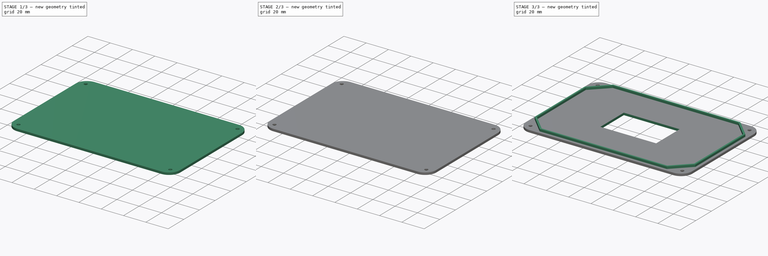
[diagram: build sequence overview — one tinted view per stage of 3, left to right]
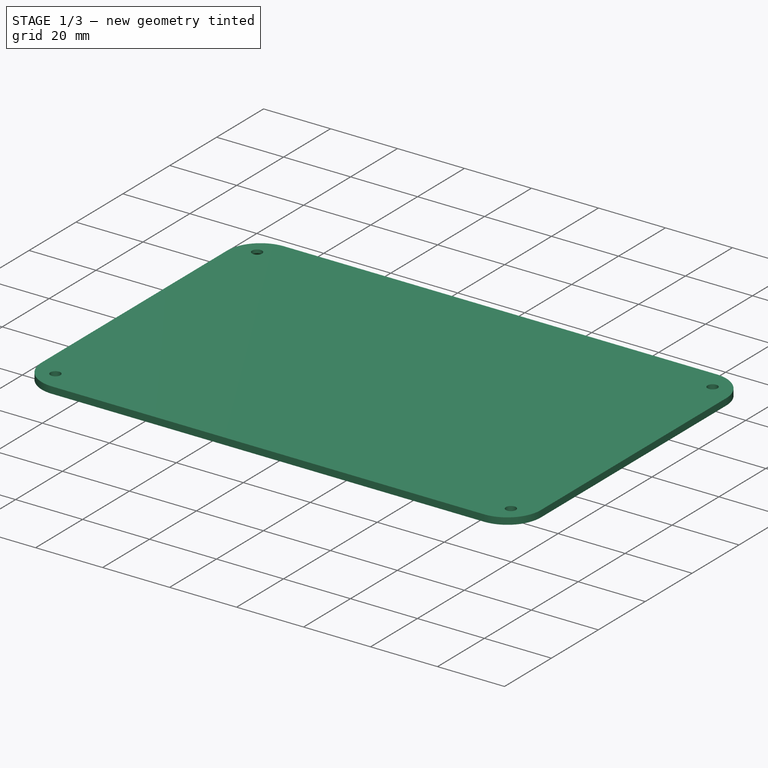
[diagram: stage 1 of 3 — iso view after this stage's code; geometry added in this stage tinted green]
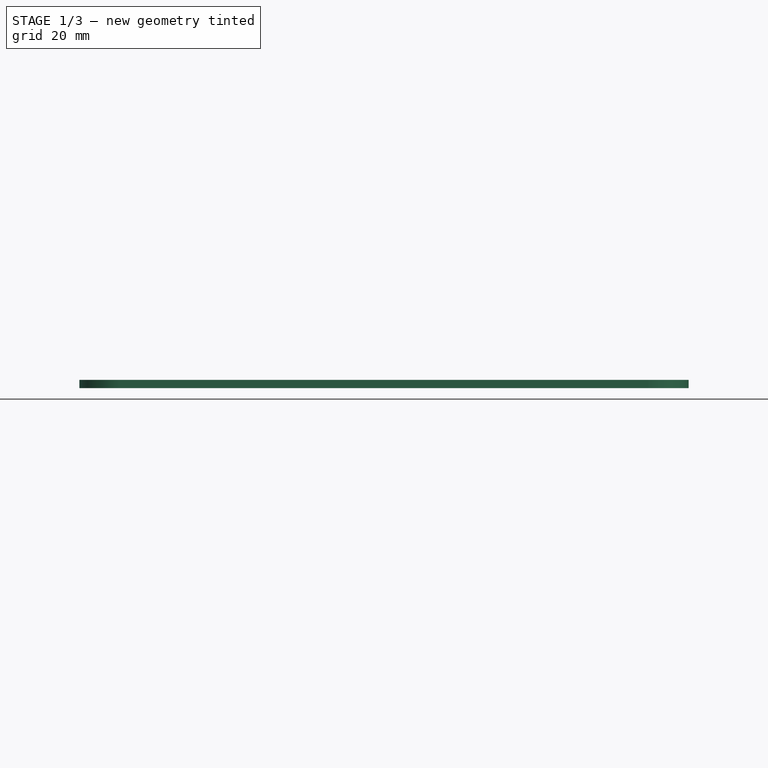
[diagram: stage 1 of 3 — front view after this stage's code; geometry added in this stage tinted green]
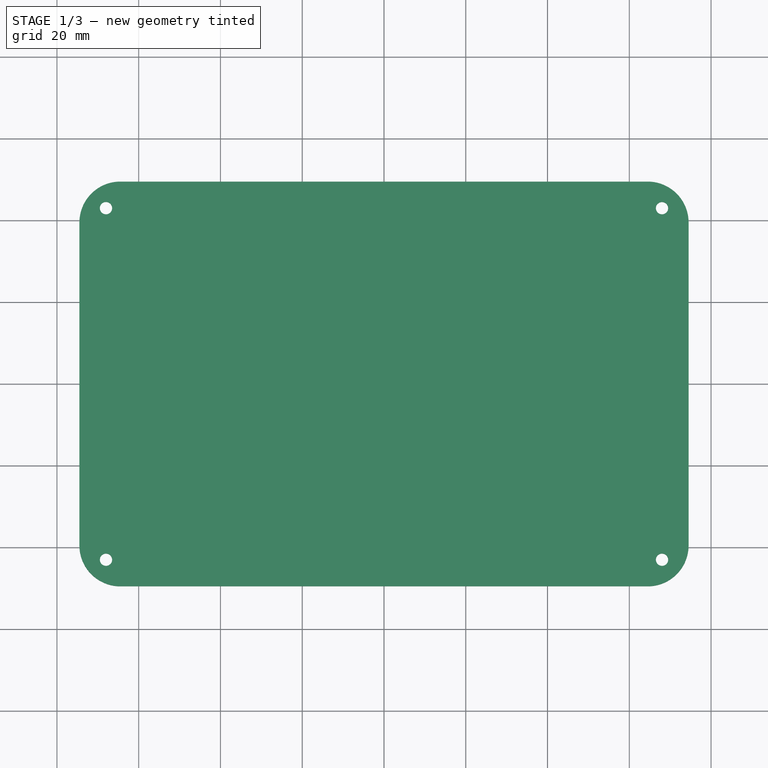
[diagram: stage 1 of 3 — top view after this stage's code; geometry added in this stage tinted green]
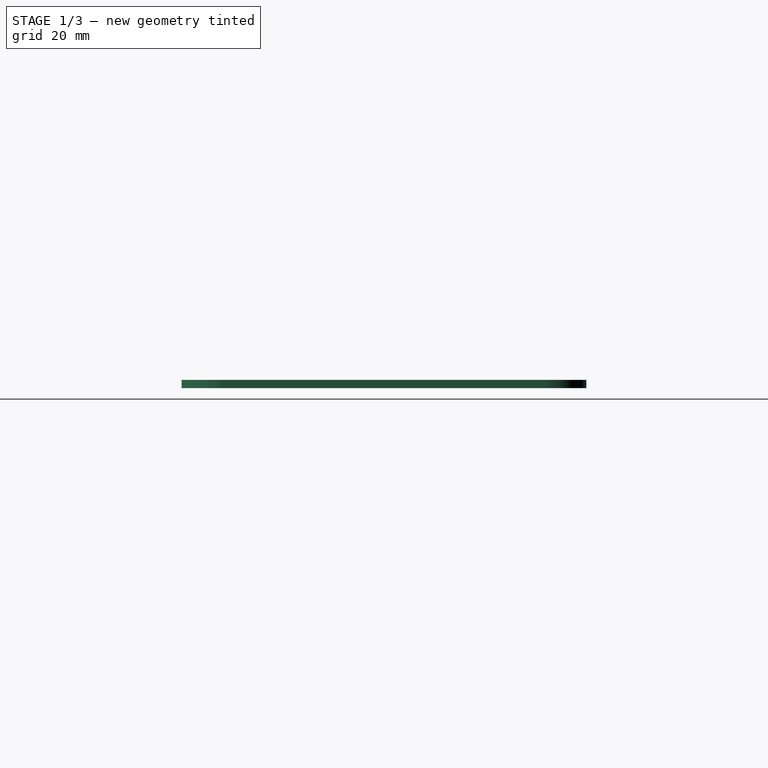
[diagram: stage 1 of 3 — right view after this stage's code; geometry added in this stage tinted green]
FCSTD DOCUMENT  (FreeCAD 0.18.4R)
Label: lid
License: All rights reserved
LicenseURL: http://en.wikipedia.org/wiki/All_rights_reserved
objects: Sketcher::SketchObject×4, PartDesign::Chamfer×4, PartDesign::Pad×2, PartDesign::Pocket×2, PartDesign::Body×1
note: 17 computed .brp shape members not serialized (recipe doc carries the construction recipe); baked Part::Feature solids carry a one-line shape summary decoded from their .brp

FEATURE [Sketcher::SketchObject] Sketch
  MapMode = 5
  Support = -> [XY_Plane]
  sketch-geometry (8):
    g0: LineSegment StartX=-64.5 StartY=49.5 StartZ=0 EndX=64.5 EndY=49.5 EndZ=0
    g1: LineSegment StartX=74.5 StartY=39.5 StartZ=0 EndX=74.5 EndY=-39.5 EndZ=0
    g2: LineSegment StartX=64.5 StartY=-49.5 StartZ=0 EndX=-64.5 EndY=-49.5 EndZ=0
    g3: LineSegment StartX=-74.5 StartY=-39.5 StartZ=0 EndX=-74.5 EndY=39.5 EndZ=0
    g4: ArcOfCircle CenterX=-64.5 CenterY=39.5 CenterZ=0 NormalX=0 NormalY=0 NormalZ=1 AngleXU=0 Radius=10 StartAngle=1.5708 EndAngle=3.14159
    g5: ArcOfCircle CenterX=64.5 CenterY=39.5 CenterZ=0 NormalX=0 NormalY=0 NormalZ=1 AngleXU=0 Radius=10 StartAngle=0 EndAngle=1.5708
    g6: ArcOfCircle CenterX=64.5 CenterY=-39.5 CenterZ=0 NormalX=0 NormalY=0 NormalZ=1 AngleXU=0 Radius=10 StartAngle=4.71239 EndAngle=6.28319
    g7: ArcOfCircle CenterX=-64.5 CenterY=-39.5 CenterZ=0 NormalX=0 NormalY=0 NormalZ=1 AngleXU=0 Radius=10 StartAngle=3.14159 EndAngle=4.71239
  constraints (19):
    c: Horizontal(g0)
    c: Horizontal(g2)
    c: Vertical(g1)
    c: Vertical(g3)
    c: Tangent(g3,g4) = 1.5708
    c: Tangent(g0,g4) = 1.5708
    c: Tangent(g0,g5) = 1.5708
    c: Tangent(g1,g5) = 1.5708
    c: Tangent(g1,g6) = 1.5708
    c: Tangent(g2,g6) = 1.5708
    c: Tangent(g2,g7) = 1.5708
    c: Tangent(g3,g7) = 1.5708
    c: Equal(g4,g5)
    c: Equal(g5,g6)
    c: Equal(g6,g7)
    c: Radius(g4) = 10
    c: DistanceX(g3,g1) = 149
    c: DistanceY(g2,g0) = 99
    c: Symmetric(g4,g6,g-1)
FEATURE [PartDesign::Pad] Pad
  Length = 2
  Length2 = 100
  Profile = -> Sketch
  Type = 0
FEATURE [Sketcher::SketchObject] Sketch002
  MapMode = 5
  Placement = pos=(0,0,4) rot=(0,0,1;0rad)
  sketch-geometry (4):
    g0: Circle CenterX=-68 CenterY=43 CenterZ=0 NormalX=0 NormalY=0 NormalZ=1 AngleXU=0 Radius=1.5
    g1: Circle CenterX=-68 CenterY=-43 CenterZ=0 NormalX=0 NormalY=0 NormalZ=1 AngleXU=0 Radius=1.5
    g2: Circle CenterX=68 CenterY=-43 CenterZ=0 NormalX=0 NormalY=0 NormalZ=1 AngleXU=0 Radius=1.5
    g3: Circle CenterX=68 CenterY=43 CenterZ=0 NormalX=0 NormalY=0 NormalZ=1 AngleXU=0 Radius=1.5
  constraints (9):
    c: Equal(g3,g0)
    c: Equal(g0,g1)
    c: Equal(g1,g2)
    c: Vertical(g1,g0)
    c: Vertical(g3,g2)
    c: Horizontal(g0,g3)
    c: Horizontal(g2,g1)
    c: Symmetric(g0,g2,g-1)
    c: Radius(g0) = 1.5
FEATURE [Sketcher::SketchObject] Sketch004
  MapMode = 5
  Placement = pos=(0,0,0) rot=(1,0,0;3.14159rad)
  sketch-geometry (4):
    g0: LineSegment StartX=-25 StartY=15 StartZ=0 EndX=25 EndY=15 EndZ=0
    g1: LineSegment StartX=25 StartY=15 StartZ=0 EndX=25 EndY=-15 EndZ=0
    g2: LineSegment StartX=25 StartY=-15 StartZ=0 EndX=-25 EndY=-15 EndZ=0
    g3: LineSegment StartX=-25 StartY=-15 StartZ=0 EndX=-25 EndY=15 EndZ=0
  constraints (11):
    c: Coincident(g0,g1)
    c: Coincident(g1,g2)
    c: Coincident(g2,g3)
    c: Coincident(g3,g0)
    c: Horizontal(g0)
    c: Horizontal(g2)
    c: Vertical(g1)
    c: Vertical(g3)
    c: DistanceX(g0,g0) = 50
    c: DistanceY(g3,g3) = 30
    c: Symmetric(g1,g0,g-1)
FEATURE [PartDesign::Pocket] Pocket
  BaseFeature = -> Pad
  Length = 5
  Length2 = 100
  Profile = -> Sketch002
  Type = 0
FEATURE [PartDesign::Chamfer] Chamfer
  Base = -> Pocket [Edge17]
  BaseFeature = -> Pocket
  Size = 1
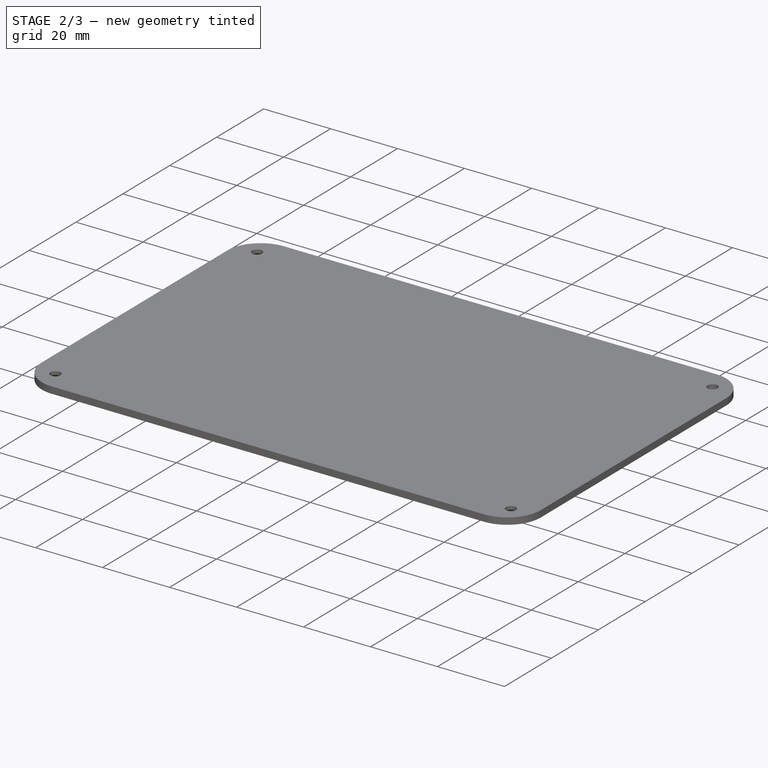
[diagram: stage 2 of 3 — iso view after this stage's code; geometry added in this stage tinted green]
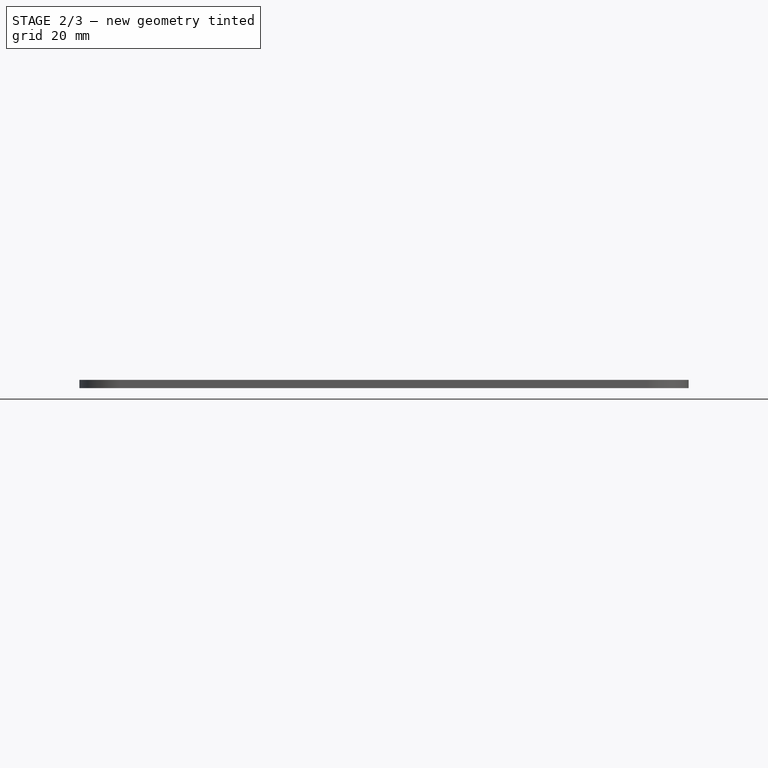
[diagram: stage 2 of 3 — front view after this stage's code; geometry added in this stage tinted green]
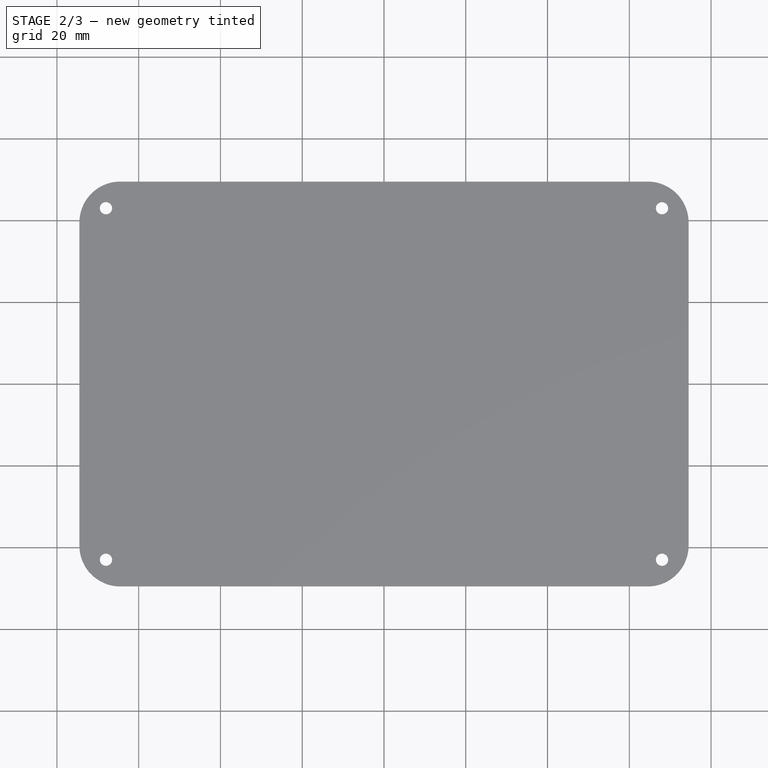
[diagram: stage 2 of 3 — top view after this stage's code; geometry added in this stage tinted green]
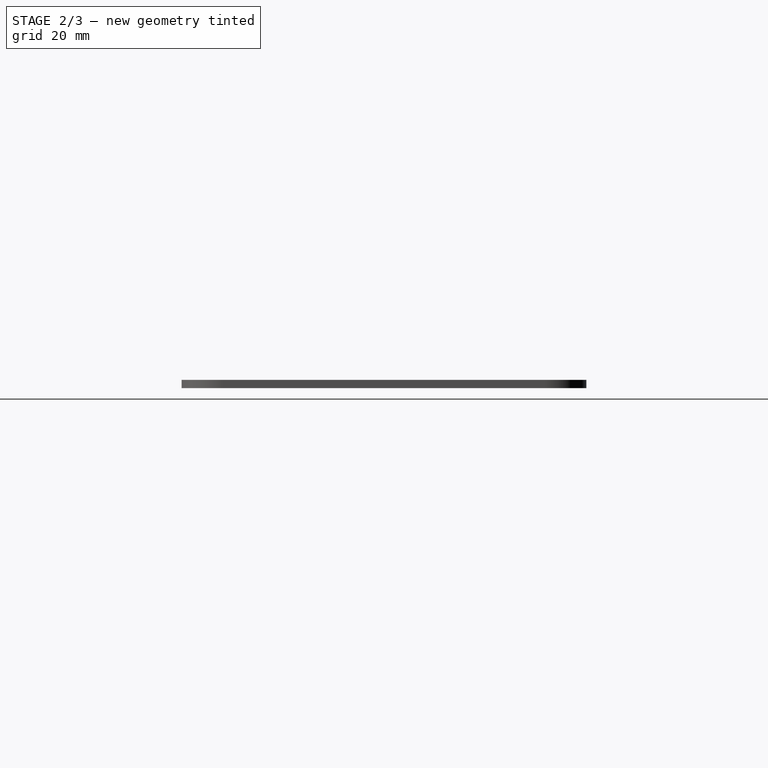
[diagram: stage 2 of 3 — right view after this stage's code; geometry added in this stage tinted green]
FEATURE [PartDesign::Chamfer] Chamfer001
  Base = -> Chamfer [Edge11]
  BaseFeature = -> Chamfer
  Size = 1
FEATURE [PartDesign::Chamfer] Chamfer002
  Base = -> Chamfer001 [Edge12]
  BaseFeature = -> Chamfer001
  Size = 1
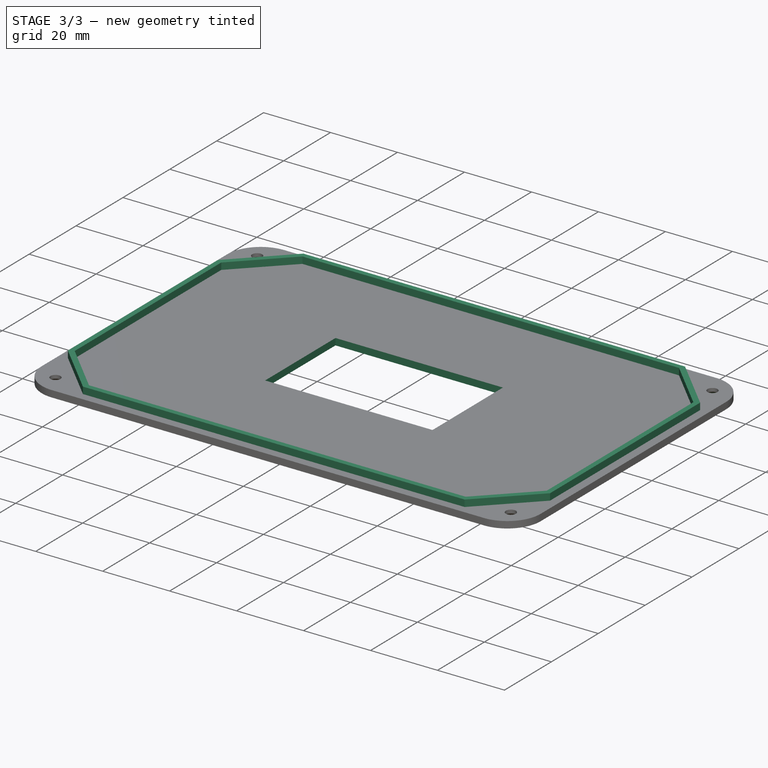
[diagram: stage 3 of 3 — iso view after this stage's code; geometry added in this stage tinted green]
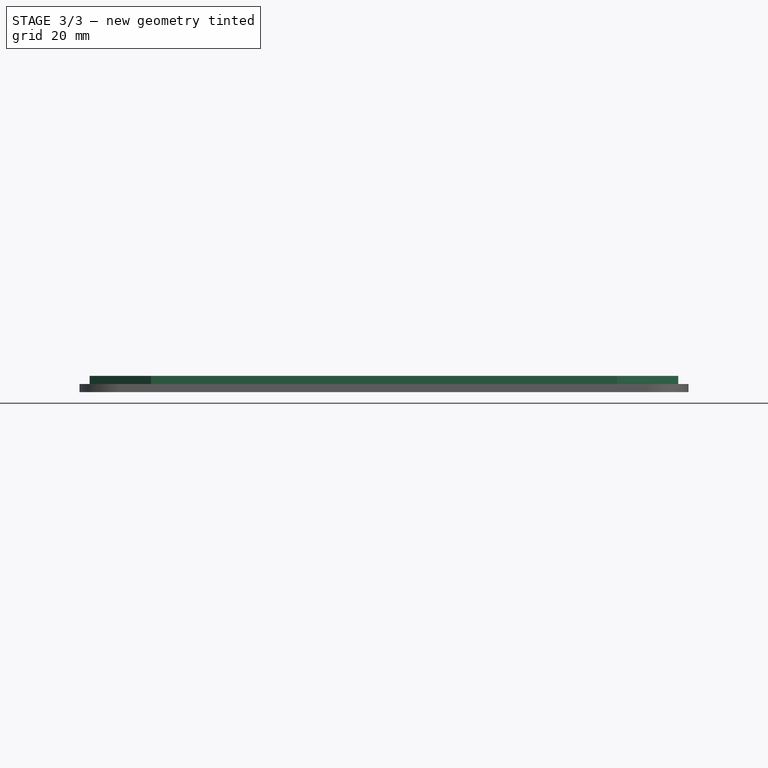
[diagram: stage 3 of 3 — front view after this stage's code; geometry added in this stage tinted green]
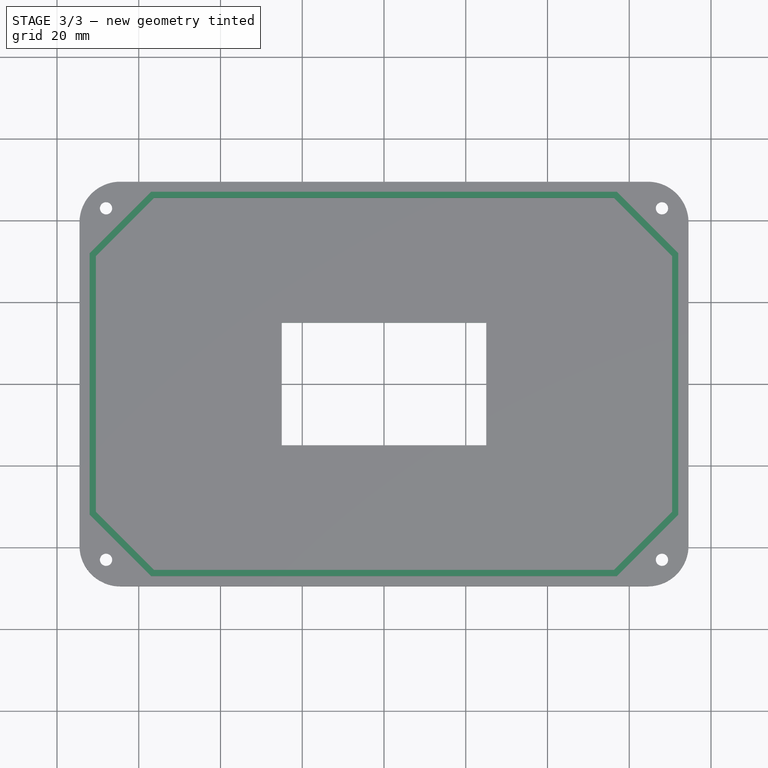
[diagram: stage 3 of 3 — top view after this stage's code; geometry added in this stage tinted green]
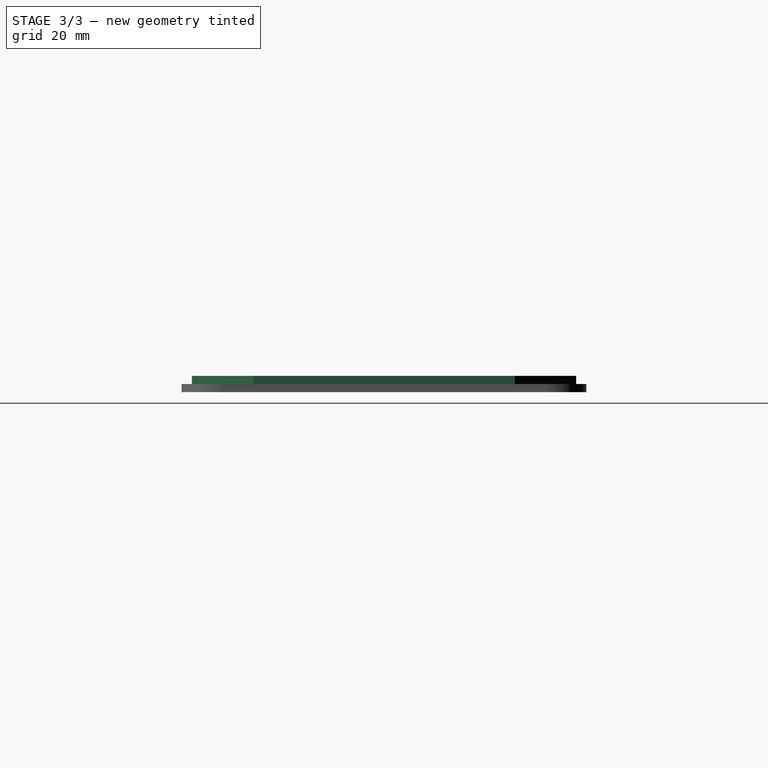
[diagram: stage 3 of 3 — right view after this stage's code; geometry added in this stage tinted green]
FEATURE [PartDesign::Chamfer] Chamfer003
  Base = -> Chamfer002 [Edge12]
  BaseFeature = -> Chamfer002
  Size = 1
FEATURE [PartDesign::Pocket] Pocket001
  BaseFeature = -> Chamfer003
  Length = 5
  Length2 = 100
  Profile = -> Sketch004
  Type = 0
FEATURE [Sketcher::SketchObject] Sketch005
  ExternalGeometry = -> [Pocket001]
  MapMode = 5
  Placement = pos=(0,0,2) rot=(0,0,1;0rad)
  Support = -> [Pocket001]
  sketch-geometry (16):
    g0: LineSegment StartX=-57 StartY=47 StartZ=0 EndX=57 EndY=47 EndZ=0
    g1: LineSegment StartX=57 StartY=47 StartZ=0 EndX=72 EndY=32 EndZ=0
    g2: LineSegment StartX=72 StartY=32 StartZ=0 EndX=72 EndY=-32 EndZ=0
    g3: LineSegment StartX=72 StartY=-32 StartZ=0 EndX=57 EndY=-47 EndZ=0
    g4: LineSegment StartX=57 StartY=-47 StartZ=0 EndX=-57 EndY=-47 EndZ=0
    g5: LineSegment StartX=-57 StartY=-47 StartZ=0 EndX=-72 EndY=-32 EndZ=0
    g6: LineSegment StartX=-72 StartY=-32 StartZ=0 EndX=-72 EndY=32 EndZ=0
    g7: LineSegment StartX=-72 StartY=32 StartZ=0 EndX=-57 EndY=47 EndZ=0
    g8: LineSegment StartX=-70.5 StartY=31.25 StartZ=0 EndX=-56.25 EndY=45.5 EndZ=0
    g9: LineSegment StartX=-56.25 StartY=45.5 StartZ=0 EndX=56.25 EndY=45.5 EndZ=0
    g10: LineSegment StartX=56.25 StartY=45.5 StartZ=0 EndX=70.5 EndY=31.25 EndZ=0
    g11: LineSegment StartX=70.5 StartY=31.25 StartZ=0 EndX=70.5 EndY=-31.25 EndZ=0
    g12: LineSegment StartX=70.5 StartY=-31.25 StartZ=0 EndX=56.25 EndY=-45.5 EndZ=0
    g13: LineSegment StartX=56.25 StartY=-45.5 StartZ=0 EndX=-56.25 EndY=-45.5 EndZ=0
    g14: LineSegment StartX=-56.25 StartY=-45.5 StartZ=0 EndX=-70.5 EndY=-31.25 EndZ=0
    g15: LineSegment StartX=-70.5 StartY=-31.25 StartZ=0 EndX=-70.5 EndY=31.25 EndZ=0
  constraints (48):
    c: Horizontal(g0)
    c: Coincident(g0,g1)
    c: Coincident(g1,g2)
    c: Coincident(g2,g3)
    c: Coincident(g3,g4)
    c: Horizontal(g4)
    c: Coincident(g4,g5)
    c: Coincident(g5,g6)
    c: Coincident(g6,g7)
    c: Coincident(g7,g0)
    c: Vertical(g6)
    c: Vertical(g2)
    c: Equal(g0,g4)
    c: Equal(g6,g2)
    c: Equal(g3,g5)
    c: Equal(g7,g1)
    c: Equal(g1,g3)
    c: DistanceX(g-3,g6) = 2.5
    c: DistanceX(g1,g-4) = 2.5
    c: DistanceY(g0,g-5) = 2.5
    c: DistanceY(g-6,g4) = 2.5
    c: Angle(g6,g7) = 2.35619
    c: Angle(g1,g2) = 2.35619
    c: Coincident(g8,g9)
    c: Horizontal(g9)
    c: Coincident(g9,g10)
    c: Coincident(g10,g11)
    c: Vertical(g11)
    c: Coincident(g11,g12)
    c: Coincident(g12,g13)
    c: Horizontal(g13)
    c: Coincident(g13,g14)
    c: Coincident(g14,g15)
    c: Coincident(g15,g8)
    c: Vertical(g15)
    c: Angle(g15,g8) = 2.35619
    c: Equal(g8,g14)
    c: Equal(g14,g12)
    c: Equal(g12,g10)
    c: Equal(g9,g13)
    c: Equal(g11,g15)
    c: Angle(g10,g11) = 2.35619
    c: DistanceY(g8,g0) = 1.5
    c: DistanceX(g6,g8) = 1.5
    c: DistanceX(g10,g1) = 1.5
    c: DistanceY(g4,g13) = 1.5
    c: DistanceY(g5,g14) = 0.75
    c: DistanceX(g3,g2) = 15
FEATURE [PartDesign::Pad] Pad001
  BaseFeature = -> Pocket001
  Length = 2
  Length2 = 100
  Profile = -> Sketch005
  Type = 0
FEATURE [PartDesign::Body] Body
  Group = -> [Sketch,Pad,Sketch002,Pocket,Chamfer,Chamfer001,Chamfer002,Chamfer003,Sketch004,Pocket001,Sketch005,Pad001]
  Origin = -> Origin
  Tip = -> Pad001
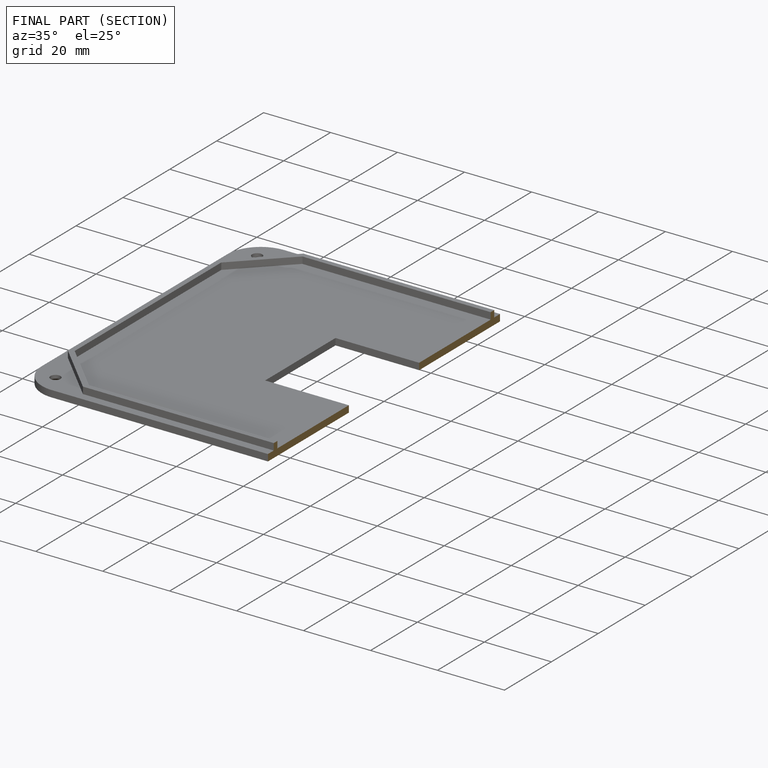
[diagram: finished part — half-section view (interior)]
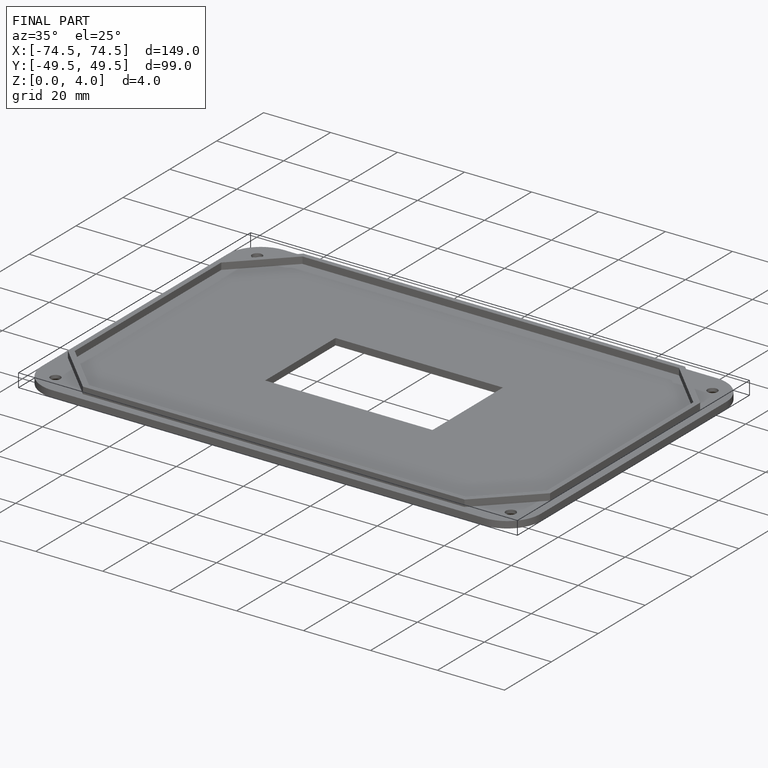
[diagram: finished part — iso view with bounding-box wireframe]
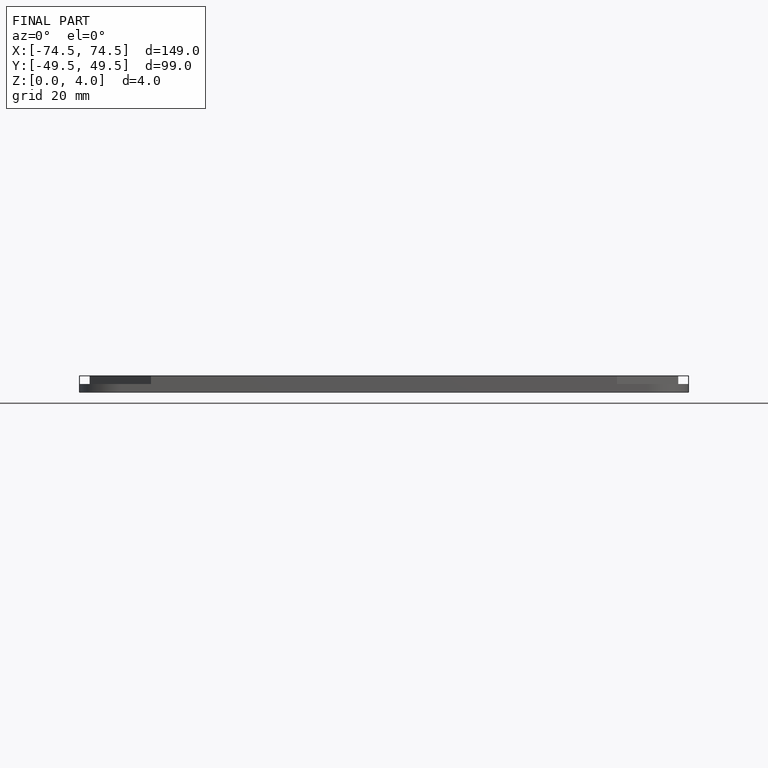
[diagram: finished part — front view with bounding-box wireframe]
